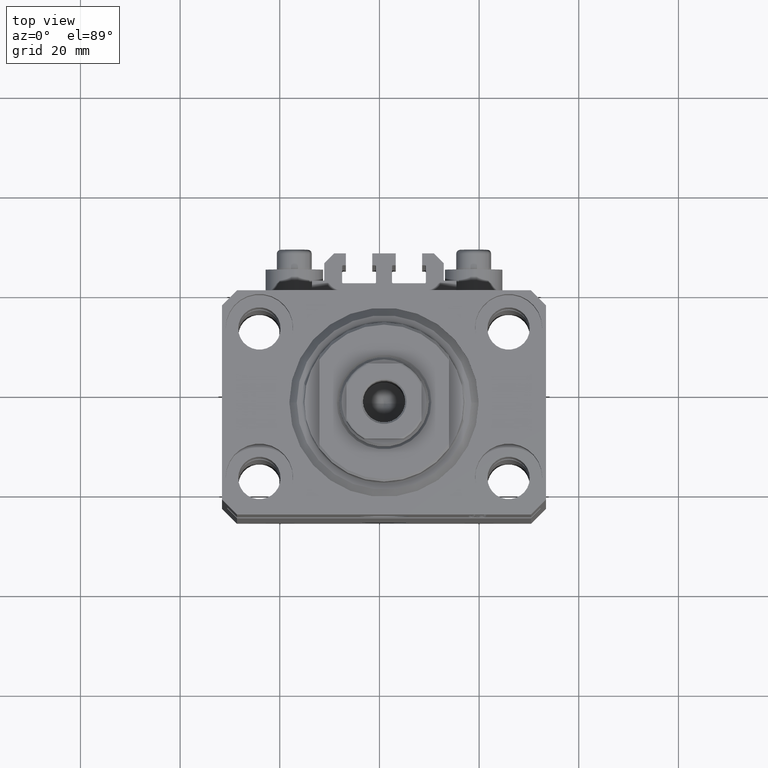
[diagram: clean part render]
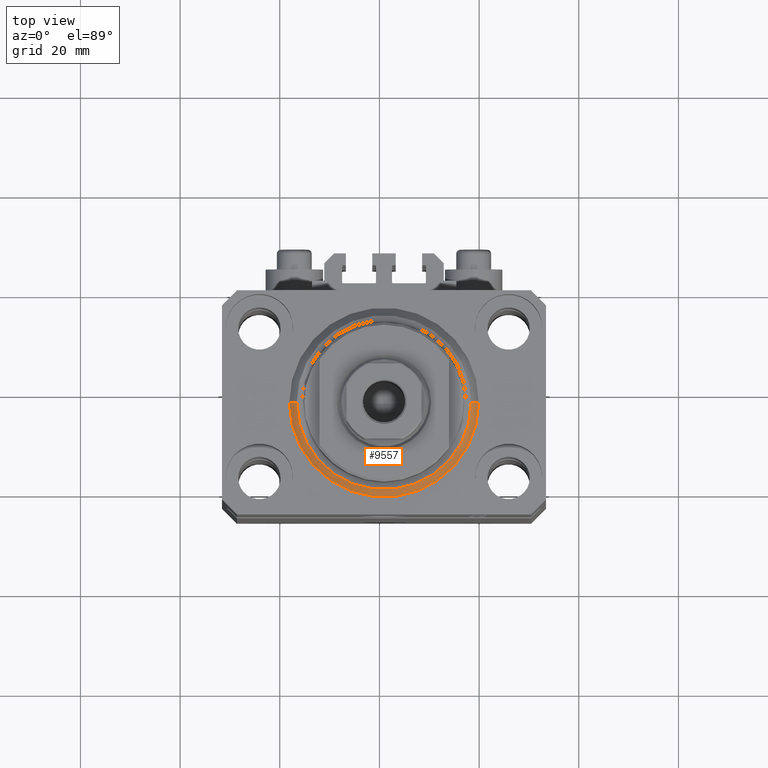
[diagram: same view with one face highlighted and labeled with its STEP entity id]
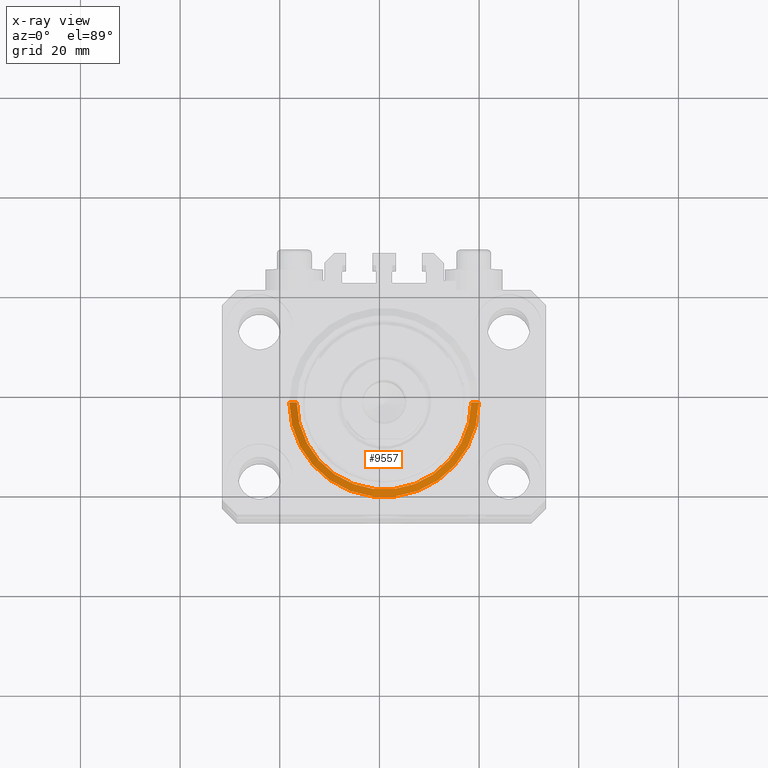
[diagram: x-ray of the same camera — body ghosted, the highlighted face saturated]
A machine part, top view. The second image highlights one B-rep face of the part: STEP entity #9557.
The next image is the same camera in x-ray: the body ghosted, the highlighted face saturated — about 0% of this face is hidden behind the body in this view.
In plain terms, the highlighted conical surface has half-angle 45 deg.
Its self-contained STEP definition (entity closure, byte-faithful):
#65 = CARTESIAN_POINT ( 'NONE',  ( 17.49999999999999289, 0.000000000000000000, 0.000000000000000000 ) ) ;
#523 = CARTESIAN_POINT ( 'NONE',  ( 0.000000000000000000, 0.000000000000000000, 1.500000000000004885 ) ) ;
#3770 = CARTESIAN_POINT ( 'NONE',  ( 0.000000000000000000, 0.000000000000000000, 0.000000000000000000 ) ) ;
#3995 = DIRECTION ( 'NONE',  ( -0.000000000000000000, -0.000000000000000000, -1.000000000000000000 ) ) ;
#5076 = LINE ( 'NONE', #40871, #16485 ) ;
#5617 = VECTOR ( 'NONE', #12881, 1000.000000000000000 ) ;
#5923 = VERTEX_POINT ( 'NONE', #45845 ) ;
#9557 = ADVANCED_FACE ( 'NONE', ( #33225 ), #37140, .T. ) ;
#12668 = EDGE_LOOP ( 'NONE', ( #44522, #38069, #19830, #46941 ) ) ;
#12881 = DIRECTION ( 'NONE',  ( 0.7071067811865483499, 0.000000000000000000, 0.7071067811865467956 ) ) ;
#14740 = DIRECTION ( 'NONE',  ( 1.000000000000000000, 0.000000000000000000, 0.000000000000000000 ) ) ;
#15081 = DIRECTION ( 'NONE',  ( -0.000000000000000000, -0.000000000000000000, 1.000000000000000000 ) ) ;
#16485 = VECTOR ( 'NONE', #19170, 1000.000000000000000 ) ;
#16583 = AXIS2_PLACEMENT_3D ( 'NONE', #523, #15081, #25380 ) ;
#17633 = DIRECTION ( 'NONE',  ( 1.000000000000000000, 0.000000000000000000, 0.000000000000000000 ) ) ;
#18508 = CARTESIAN_POINT ( 'NONE',  ( 19.00000000000000000, 2.326828918379970970E-15, 1.500000000000004885 ) ) ;
#19170 = DIRECTION ( 'NONE',  ( -0.7071067811865483499, 8.659560562354943952E-17, 0.7071067811865467956 ) ) ;
#19830 = ORIENTED_EDGE ( 'NONE', *, *, #34962, .T. ) ;
#20772 = AXIS2_PLACEMENT_3D ( 'NONE', #43834, #31961, #17633 ) ;
#25380 = DIRECTION ( 'NONE',  ( 1.000000000000000000, 0.000000000000000000, 0.000000000000000000 ) ) ;
#31517 = LINE ( 'NONE', #45565, #5617 ) ;
#31961 = DIRECTION ( 'NONE',  ( -0.000000000000000000, -0.000000000000000000, 1.000000000000000000 ) ) ;
#32045 = EDGE_CURVE ( 'NONE', #5923, #33867, #35243, .T. ) ;
#32750 = EDGE_CURVE ( 'NONE', #39780, #37907, #36783, .T. ) ;
#33225 = FACE_OUTER_BOUND ( 'NONE', #12668, .T. ) ;
#33867 = VERTEX_POINT ( 'NONE', #18508 ) ;
#34962 = EDGE_CURVE ( 'NONE', #39780, #33867, #31517, .T. ) ;
#35243 = CIRCLE ( 'NONE', #20772, 19.00000000000000000 ) ;
#36783 = CIRCLE ( 'NONE', #45944, 17.49999999999999289 ) ;
#37140 = CONICAL_SURFACE ( 'NONE', #16583, 19.00000000000000000, 0.7853981633974492782 ) ;
#37907 = VERTEX_POINT ( 'NONE', #42591 ) ;
#38069 = ORIENTED_EDGE ( 'NONE', *, *, #32750, .F. ) ;
#39780 = VERTEX_POINT ( 'NONE', #65 ) ;
#40871 = CARTESIAN_POINT ( 'NONE',  ( -19.00000000000000000, 2.326828918379970970E-15, 1.500000000000004885 ) ) ;
#42591 = CARTESIAN_POINT ( 'NONE',  ( -17.49999999999999289, 2.234980408443919215E-15, 0.000000000000000000 ) ) ;
#43834 = CARTESIAN_POINT ( 'NONE',  ( 0.000000000000000000, 0.000000000000000000, 1.500000000000004885 ) ) ;
#44522 = ORIENTED_EDGE ( 'NONE', *, *, #45592, .F. ) ;
#45565 = CARTESIAN_POINT ( 'NONE',  ( 19.00000000000000000, 0.000000000000000000, 1.500000000000004885 ) ) ;
#45592 = EDGE_CURVE ( 'NONE', #37907, #5923, #5076, .T. ) ;
#45845 = CARTESIAN_POINT ( 'NONE',  ( -19.00000000000000000, 0.000000000000000000, 1.500000000000004885 ) ) ;
#45944 = AXIS2_PLACEMENT_3D ( 'NONE', #3770, #3995, #14740 ) ;
#46941 = ORIENTED_EDGE ( 'NONE', *, *, #32045, .F. ) ;